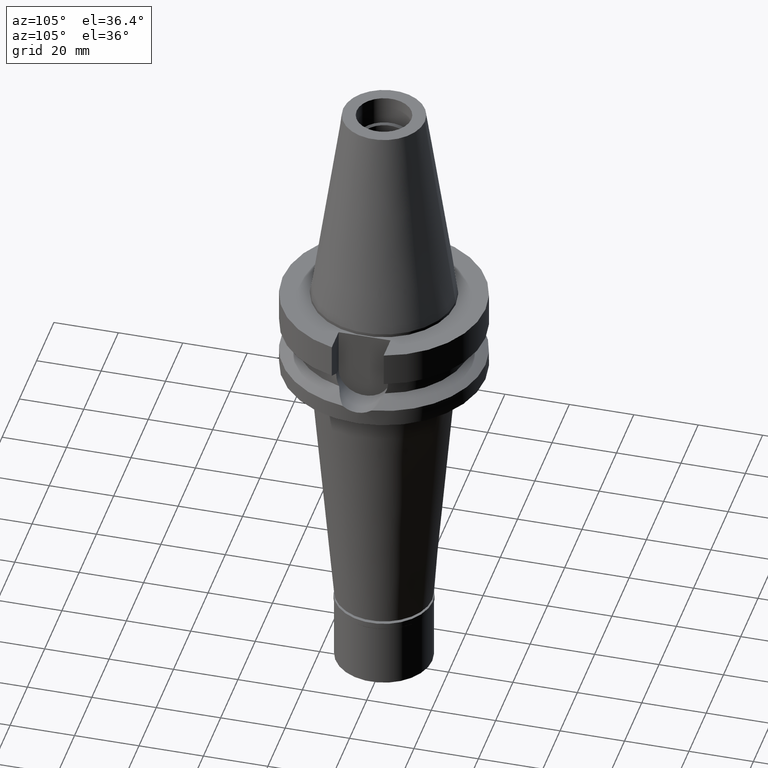
[diagram: clean part render]
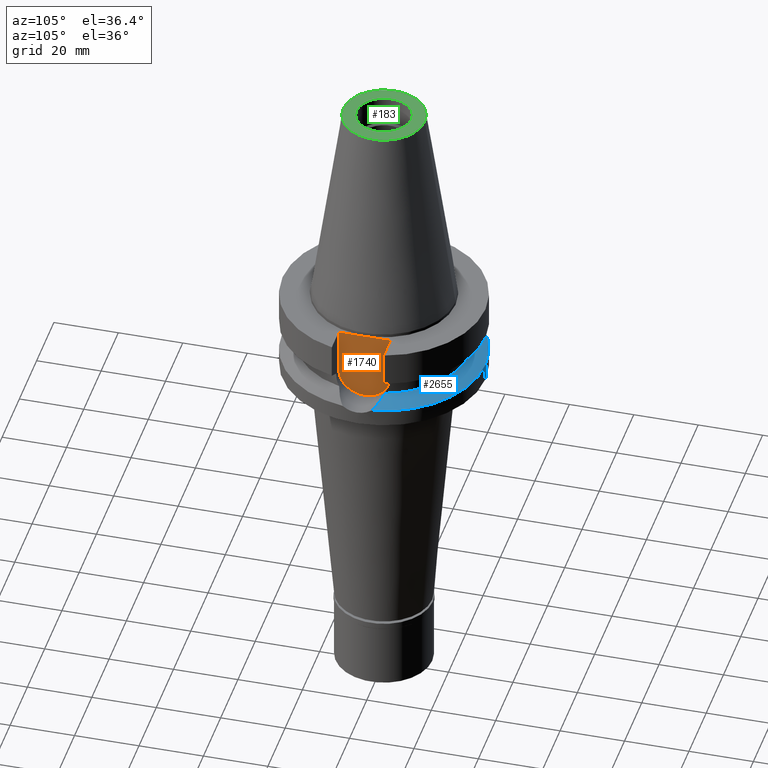
[diagram: same view with three faces highlighted in distinct colors, each labeled with its STEP entity id]
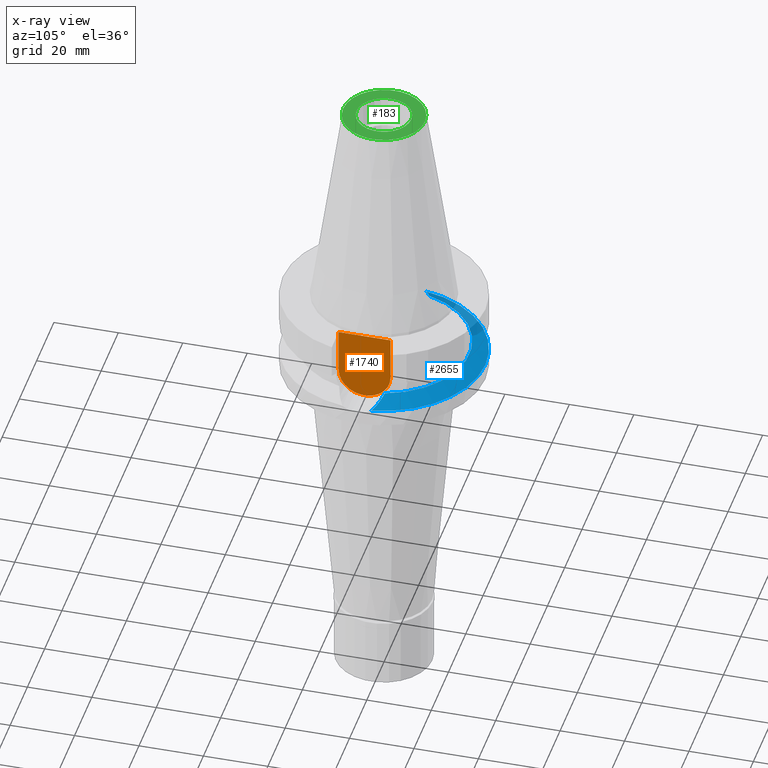
[diagram: x-ray of the same camera — body ghosted, the three highlighted faces saturated]
A machine part, auxiliary view with three faces highlighted in distinct colors.
The next image is the same camera in x-ray (body ghosted, the three faces saturated) — at least one of them is partly hidden behind the body in this view.
Their STEP definitions:

[orange] entity #1740 — the highlighted planar face has unit normal (1, 0, 0).
#69 = CARTESIAN_POINT ( 'NONE',  ( 22.50000000000000000, 8.050000000000000711, -1.000000000000000000 ) ) ;
#137 = CARTESIAN_POINT ( 'NONE',  ( 22.50000000000000000, 8.050000000000000711, -1.000000000000000000 ) ) ;
#146 = VERTEX_POINT ( 'NONE', #3025 ) ;
#267 = CARTESIAN_POINT ( 'NONE',  ( 22.50000000000000000, 0.0000000000000000000, -14.94999999999999929 ) ) ;
#316 = LINE ( 'NONE', #69, #1089 ) ;
#482 = AXIS2_PLACEMENT_3D ( 'NONE', #267, #2691, #2231 ) ;
#486 = EDGE_CURVE ( 'NONE', #3081, #2788, #865, .T. ) ;
#499 = VECTOR ( 'NONE', #2795, 1000.000000000000000 ) ;
#583 = VECTOR ( 'NONE', #855, 1000.000000000000000 ) ;
#742 = EDGE_CURVE ( 'NONE', #146, #3081, #1860, .T. ) ;
#814 = ORIENTED_EDGE ( 'NONE', *, *, #944, .F. ) ;
#855 = DIRECTION ( 'NONE',  ( 0.0000000000000000000, 0.0000000000000000000, -1.000000000000000000 ) ) ;
#865 = LINE ( 'NONE', #2880, #499 ) ;
#944 = EDGE_CURVE ( 'NONE', #2580, #146, #1070, .T. ) ;
#1070 = LINE ( 'NONE', #3024, #583 ) ;
#1089 = VECTOR ( 'NONE', #2675, 1000.000000000000000 ) ;
#1200 = AXIS2_PLACEMENT_3D ( 'NONE', #2236, #1543, #2983 ) ;
#1274 = FACE_OUTER_BOUND ( 'NONE', #2530, .T. ) ;
#1288 = PLANE ( 'NONE',  #1200 ) ;
#1306 = EDGE_CURVE ( 'NONE', #2580, #2788, #316, .T. ) ;
#1543 = DIRECTION ( 'NONE',  ( 1.000000000000000000, 0.0000000000000000000, 0.0000000000000000000 ) ) ;
#1740 = ADVANCED_FACE ( 'NONE', ( #1274 ), #1288, .T. ) ;
#1860 = CIRCLE ( 'NONE', #482, 8.050000000000000711 ) ;
#2001 = ORIENTED_EDGE ( 'NONE', *, *, #486, .F. ) ;
#2161 = CARTESIAN_POINT ( 'NONE',  ( 22.50000000000000000, -8.050000000000000711, -14.94999999999999929 ) ) ;
#2231 = DIRECTION ( 'NONE',  ( 0.0000000000000000000, 0.0000000000000000000, -1.000000000000000000 ) ) ;
#2236 = CARTESIAN_POINT ( 'NONE',  ( 22.50000000000000000, 0.0000000000000000000, 0.0000000000000000000 ) ) ;
#2333 = ORIENTED_EDGE ( 'NONE', *, *, #742, .F. ) ;
#2378 = ORIENTED_EDGE ( 'NONE', *, *, #1306, .T. ) ;
#2530 = EDGE_LOOP ( 'NONE', ( #2001, #2333, #814, #2378 ) ) ;
#2580 = VERTEX_POINT ( 'NONE', #137 ) ;
#2675 = DIRECTION ( 'NONE',  ( 0.0000000000000000000, -1.000000000000000000, 0.0000000000000000000 ) ) ;
#2691 = DIRECTION ( 'NONE',  ( -1.000000000000000000, 0.0000000000000000000, 0.0000000000000000000 ) ) ;
#2788 = VERTEX_POINT ( 'NONE', #2849 ) ;
#2795 = DIRECTION ( 'NONE',  ( 0.0000000000000000000, 0.0000000000000000000, 1.000000000000000000 ) ) ;
#2849 = CARTESIAN_POINT ( 'NONE',  ( 22.50000000000000000, -8.050000000000000711, -1.000000000000000000 ) ) ;
#2880 = CARTESIAN_POINT ( 'NONE',  ( 22.50000000000000000, -8.050000000000000711, -14.94999999999999929 ) ) ;
#2983 = DIRECTION ( 'NONE',  ( 0.0000000000000000000, 1.000000000000000000, 0.0000000000000000000 ) ) ;
#3024 = CARTESIAN_POINT ( 'NONE',  ( 22.50000000000000000, 8.050000000000000711, -1.000000000000000000 ) ) ;
#3025 = CARTESIAN_POINT ( 'NONE',  ( 22.50000000000000000, 8.050000000000000711, -14.94999999999999929 ) ) ;
#3081 = VERTEX_POINT ( 'NONE', #2161 ) ;

[blue] entity #2655 — the highlighted conical surface has half-angle 60 deg.
#25 = CARTESIAN_POINT ( 'NONE',  ( 28.98168822081506590, 5.818094105783658598, -20.51470612968774176 ) ) ;
#53 = CARTESIAN_POINT ( 'NONE',  ( 28.54932728509212225, 6.020462627736320016, -20.29383390551010891 ) ) ;
#70 = CARTESIAN_POINT ( 'NONE',  ( 28.59006052611314885, 6.001940132997263255, -20.31464647813882252 ) ) ;
#77 = CARTESIAN_POINT ( 'NONE',  ( 0.0000000000000000000, 0.0000000000000000000, -18.74774300138999905 ) ) ;
#167 = DIRECTION ( 'NONE',  ( 0.0000000000000000000, -1.000000000000000000, 0.0000000000000000000 ) ) ;
#206 = CARTESIAN_POINT ( 'NONE',  ( 0.0000000000000000000, 31.50000000000000000, -21.63449434733000132 ) ) ;
#248 = EDGE_CURVE ( 'NONE', #1035, #1864, #601, .T. ) ;
#286 = CARTESIAN_POINT ( 'NONE',  ( 30.42007299671145404, 5.025064743203127016, -21.24829236230264229 ) ) ;
#294 = CARTESIAN_POINT ( 'NONE',  ( 31.17899877608999759, 4.485536235554000051, -21.63449434733000132 ) ) ;
#319 = CARTESIAN_POINT ( 'NONE',  ( 31.17899877608999759, 4.485536235554000051, -21.63449434733000132 ) ) ;
#425 = CARTESIAN_POINT ( 'NONE',  ( -28.22583301984771254, 6.163995498765006964, -20.12828835112692261 ) ) ;
#483 = CARTESIAN_POINT ( 'NONE',  ( -26.75869481212651024, 6.731869231744169291, -19.37770436982391686 ) ) ;
#490 = CIRCLE ( 'NONE', #2719, 26.49999999999998224 ) ;
#556 = FACE_OUTER_BOUND ( 'NONE', #906, .T. ) ;
#601 = CIRCLE ( 'NONE', #2929, 31.50000000000000000 ) ;
#646 = EDGE_CURVE ( 'NONE', #1864, #2518, #1655, .T. ) ;
#667 = CARTESIAN_POINT ( 'NONE',  ( -29.74266879073617531, 5.456533180633677205, -20.90293582124543548 ) ) ;
#671 = ORIENTED_EDGE ( 'NONE', *, *, #1006, .F. ) ;
#685 = CARTESIAN_POINT ( 'NONE',  ( 0.0000000000000000000, 0.0000000000000000000, -21.63449434733000132 ) ) ;
#689 = AXIS2_PLACEMENT_3D ( 'NONE', #2342, #1137, #1106 ) ;
#699 = CARTESIAN_POINT ( 'NONE',  ( -25.53175183775000079, 7.097862220092999941, -18.74774300138999905 ) ) ;
#713 = VERTEX_POINT ( 'NONE', #2992 ) ;
#724 = CARTESIAN_POINT ( 'NONE',  ( -28.59207330143857462, 6.001859845329962084, -20.31534685548139763 ) ) ;
#779 = B_SPLINE_CURVE_WITH_KNOTS ( 'NONE', 3,
 ( #699, #2170, #483, #1186, #1219, #425, #1203, #724, #1889, #667, #1171, #2180 ),
 .UNSPECIFIED., .F., .F.,
 ( 4, 2, 2, 2, 2, 4 ),
 ( 0.0000000000000000000, 0.2499999999999987232, 0.3749999999999981126, 0.4374999999999977796, 0.4999999999999973910, 1.000000000000000000 ),
 .UNSPECIFIED. ) ;
#905 = EDGE_CURVE ( 'NONE', #1451, #1035, #1549, .T. ) ;
#906 = EDGE_LOOP ( 'NONE', ( #671, #1304, #1938, #1787, #2163 ) ) ;
#1006 = EDGE_CURVE ( 'NONE', #713, #1451, #779, .T. ) ;
#1035 = VERTEX_POINT ( 'NONE', #206 ) ;
#1041 = CARTESIAN_POINT ( 'NONE',  ( 27.67100972876786713, 6.417709817544242412, -19.84504580667409002 ) ) ;
#1097 = CONICAL_SURFACE ( 'NONE', #1156, 29.00000000000000000, 1.047197551196400456 ) ;
#1106 = DIRECTION ( 'NONE',  ( -0.9898094849552905306, 0.1423979757318985240, 0.0000000000000000000 ) ) ;
#1107 = DIRECTION ( 'NONE',  ( 0.0000000000000000000, 1.000000000000000000, 0.0000000000000000000 ) ) ;
#1137 = DIRECTION ( 'NONE',  ( 0.0000000000000000000, 0.0000000000000000000, -1.000000000000000000 ) ) ;
#1156 = AXIS2_PLACEMENT_3D ( 'NONE', #2015, #2535, #167 ) ;
#1171 = CARTESIAN_POINT ( 'NONE',  ( -30.52686832025631603, 4.980287165400016036, -21.30249867075920989 ) ) ;
#1186 = CARTESIAN_POINT ( 'NONE',  ( -27.58235689957140480, 6.427758359042840652, -19.79937674477045562 ) ) ;
#1203 = CARTESIAN_POINT ( 'NONE',  ( -28.34970098673610650, 6.110262167609122663, -20.19156128703012598 ) ) ;
#1219 = CARTESIAN_POINT ( 'NONE',  ( -27.84618369057109533, 6.323560046226911702, -19.93428845138504357 ) ) ;
#1236 = CARTESIAN_POINT ( 'NONE',  ( 28.64684868294116882, 5.975933972676910955, -20.34366108438504028 ) ) ;
#1255 = CARTESIAN_POINT ( 'NONE',  ( 28.75958365329803001, 5.923660997860877409, -20.40125591531272065 ) ) ;
#1283 = CARTESIAN_POINT ( 'NONE',  ( 30.82004863731381050, 4.757860451264241952, -21.45175499953589693 ) ) ;
#1304 = ORIENTED_EDGE ( 'NONE', *, *, #2105, .F. ) ;
#1451 = VERTEX_POINT ( 'NONE', #2990 ) ;
#1503 = CARTESIAN_POINT ( 'NONE',  ( 28.56563260069053456, 6.013057411762271265, -20.30216513427042457 ) ) ;
#1549 = CIRCLE ( 'NONE', #689, 31.50000000000001421 ) ;
#1655 = B_SPLINE_CURVE_WITH_KNOTS ( 'NONE', 3,
 ( #319, #1283, #286, #2246, #2195, #2933, #25, #1255, #1236, #70, #1503, #53, #1760, #1041, #2217, #1979 ),
 .UNSPECIFIED., .F., .F.,
 ( 4, 2, 2, 1, 1, 1, 1, 2, 2, 4 ),
 ( 0.0000000000000000000, 0.2499999999999812372, 0.3749999999999725220, 0.4374999999999684697, 0.4687499999999666933, 0.4843749999999655276, 0.4921874999999644729, 0.4960937499999642508, 0.4999999999999640288, 1.000000000000000000 ),
 .UNSPECIFIED. ) ;
#1760 = CARTESIAN_POINT ( 'NONE',  ( 28.53972615739963103, 6.024812658274371735, -20.28892812736769713 ) ) ;
#1787 = ORIENTED_EDGE ( 'NONE', *, *, #248, .F. ) ;
#1864 = VERTEX_POINT ( 'NONE', #294 ) ;
#1889 = CARTESIAN_POINT ( 'NONE',  ( -28.71186661212876245, 5.946578083451549368, -20.37651776216473465 ) ) ;
#1938 = ORIENTED_EDGE ( 'NONE', *, *, #646, .F. ) ;
#1979 = CARTESIAN_POINT ( 'NONE',  ( 25.53175183775000079, 7.097862220092999941, -18.74774300138999905 ) ) ;
#2015 = CARTESIAN_POINT ( 'NONE',  ( 0.0000000000000000000, 0.0000000000000000000, -20.19111867435999841 ) ) ;
#2022 = DIRECTION ( 'NONE',  ( 0.0000000000000000000, 0.0000000000000000000, 1.000000000000000000 ) ) ;
#2035 = DIRECTION ( 'NONE',  ( 0.9634623335000935818, 0.2678438573619981722, 0.0000000000000000000 ) ) ;
#2105 = EDGE_CURVE ( 'NONE', #2518, #713, #490, .T. ) ;
#2163 = ORIENTED_EDGE ( 'NONE', *, *, #905, .F. ) ;
#2170 = CARTESIAN_POINT ( 'NONE',  ( -26.16667780123548326, 6.923331952623480667, -19.07393458182770374 ) ) ;
#2180 = CARTESIAN_POINT ( 'NONE',  ( -31.17899877608999759, 4.485536235554000051, -21.63449434733000132 ) ) ;
#2195 = CARTESIAN_POINT ( 'NONE',  ( 29.52781433639781739, 5.539567446183609079, -20.79348020827954002 ) ) ;
#2217 = CARTESIAN_POINT ( 'NONE',  ( 26.67059636751163154, 6.784813373748468379, -19.33282144895323640 ) ) ;
#2246 = CARTESIAN_POINT ( 'NONE',  ( 29.75857128306863331, 5.412604958240233799, -20.91116793545014474 ) ) ;
#2342 = CARTESIAN_POINT ( 'NONE',  ( 0.0000000000000000000, 0.0000000000000000000, -21.63449434733000132 ) ) ;
#2376 = DIRECTION ( 'NONE',  ( 0.0000000000000000000, 0.0000000000000000000, -1.000000000000000000 ) ) ;
#2518 = VERTEX_POINT ( 'NONE', #2919 ) ;
#2535 = DIRECTION ( 'NONE',  ( 0.0000000000000000000, 0.0000000000000000000, -1.000000000000000000 ) ) ;
#2655 = ADVANCED_FACE ( 'NONE', ( #556 ), #1097, .T. ) ;
#2719 = AXIS2_PLACEMENT_3D ( 'NONE', #77, #2022, #2035 ) ;
#2919 = CARTESIAN_POINT ( 'NONE',  ( 25.53175183775000079, 7.097862220092999941, -18.74774300138999905 ) ) ;
#2929 = AXIS2_PLACEMENT_3D ( 'NONE', #685, #2376, #1107 ) ;
#2933 = CARTESIAN_POINT ( 'NONE',  ( 29.16629435320678354, 5.725932087550268612, -20.60896137445779530 ) ) ;
#2990 = CARTESIAN_POINT ( 'NONE',  ( -31.17899877608999759, 4.485536235554000051, -21.63449434733000132 ) ) ;
#2992 = CARTESIAN_POINT ( 'NONE',  ( -25.53175183775000079, 7.097862220092999941, -18.74774300138999905 ) ) ;

[green] entity #183 — the highlighted planar face has unit normal (0, 0, -1).
#19 = EDGE_LOOP ( 'NONE', ( #1831, #2257 ) ) ;
#20 = EDGE_CURVE ( 'NONE', #2070, #2917, #2968, .T. ) ;
#87 = CIRCLE ( 'NONE', #1360, 12.68766899429999917 ) ;
#105 = CARTESIAN_POINT ( 'NONE',  ( 0.0000000000000000000, 2.144172848286999836E-14, 65.40000000000000568 ) ) ;
#140 = DIRECTION ( 'NONE',  ( 0.0000000000000000000, -1.000000000000000000, 0.0000000000000000000 ) ) ;
#147 = EDGE_CURVE ( 'NONE', #1607, #1861, #951, .T. ) ;
#169 = EDGE_CURVE ( 'NONE', #1861, #1607, #87, .T. ) ;
#183 = ADVANCED_FACE ( 'NONE', ( #812, #2993 ), #823, .F. ) ;
#320 = DIRECTION ( 'NONE',  ( 0.0000000000000000000, 1.000000000000000000, 0.0000000000000000000 ) ) ;
#410 = DIRECTION ( 'NONE',  ( 0.0000000000000000000, 0.0000000000000000000, -1.000000000000000000 ) ) ;
#484 = AXIS2_PLACEMENT_3D ( 'NONE', #105, #555, #1761 ) ;
#485 = AXIS2_PLACEMENT_3D ( 'NONE', #1261, #781, #1748 ) ;
#528 = EDGE_LOOP ( 'NONE', ( #2209, #2201 ) ) ;
#555 = DIRECTION ( 'NONE',  ( 0.0000000000000000000, 0.0000000000000000000, 1.000000000000000000 ) ) ;
#781 = DIRECTION ( 'NONE',  ( 0.0000000000000000000, 0.0000000000000000000, 1.000000000000000000 ) ) ;
#792 = CARTESIAN_POINT ( 'NONE',  ( 0.0000000000000000000, 1.625106302469000024E-14, 65.40000000000000568 ) ) ;
#812 = FACE_OUTER_BOUND ( 'NONE', #528, .T. ) ;
#823 = PLANE ( 'NONE',  #1355 ) ;
#856 = CARTESIAN_POINT ( 'NONE',  ( 0.0000000000000000000, 1.625106302469000024E-14, 65.40000000000000568 ) ) ;
#873 = CARTESIAN_POINT ( 'NONE',  ( 0.0000000000000000000, -8.500000000000000000, 65.40000000000000568 ) ) ;
#951 = CIRCLE ( 'NONE', #2467, 12.68766899429999917 ) ;
#1261 = CARTESIAN_POINT ( 'NONE',  ( 0.0000000000000000000, 2.144172848286999836E-14, 65.40000000000000568 ) ) ;
#1275 = CARTESIAN_POINT ( 'NONE',  ( 0.0000000000000000000, 12.68766899429999917, 65.40000000000000568 ) ) ;
#1355 = AXIS2_PLACEMENT_3D ( 'NONE', #2079, #410, #140 ) ;
#1360 = AXIS2_PLACEMENT_3D ( 'NONE', #792, #1998, #320 ) ;
#1580 = DIRECTION ( 'NONE',  ( 0.0000000000000000000, 0.0000000000000000000, -1.000000000000000000 ) ) ;
#1607 = VERTEX_POINT ( 'NONE', #2682 ) ;
#1659 = CIRCLE ( 'NONE', #485, 8.500000000000000000 ) ;
#1748 = DIRECTION ( 'NONE',  ( 0.0000000000000000000, 1.000000000000000000, 0.0000000000000000000 ) ) ;
#1761 = DIRECTION ( 'NONE',  ( 0.0000000000000000000, -1.000000000000000000, 0.0000000000000000000 ) ) ;
#1801 = EDGE_CURVE ( 'NONE', #2917, #2070, #1659, .T. ) ;
#1831 = ORIENTED_EDGE ( 'NONE', *, *, #1801, .F. ) ;
#1861 = VERTEX_POINT ( 'NONE', #1275 ) ;
#1998 = DIRECTION ( 'NONE',  ( 0.0000000000000000000, 0.0000000000000000000, -1.000000000000000000 ) ) ;
#2070 = VERTEX_POINT ( 'NONE', #873 ) ;
#2079 = CARTESIAN_POINT ( 'NONE',  ( 0.0000000000000000000, 2.025565805790000122E-14, 65.40000000000000568 ) ) ;
#2201 = ORIENTED_EDGE ( 'NONE', *, *, #147, .F. ) ;
#2209 = ORIENTED_EDGE ( 'NONE', *, *, #169, .F. ) ;
#2257 = ORIENTED_EDGE ( 'NONE', *, *, #20, .F. ) ;
#2459 = CARTESIAN_POINT ( 'NONE',  ( 0.0000000000000000000, 8.500000000000000000, 65.40000000000000568 ) ) ;
#2467 = AXIS2_PLACEMENT_3D ( 'NONE', #856, #1580, #2539 ) ;
#2539 = DIRECTION ( 'NONE',  ( 0.0000000000000000000, -1.000000000000000000, 0.0000000000000000000 ) ) ;
#2682 = CARTESIAN_POINT ( 'NONE',  ( 0.0000000000000000000, -12.68766899429999917, 65.40000000000000568 ) ) ;
#2917 = VERTEX_POINT ( 'NONE', #2459 ) ;
#2968 = CIRCLE ( 'NONE', #484, 8.500000000000000000 ) ;
#2993 = FACE_BOUND ( 'NONE', #19, .T. ) ;